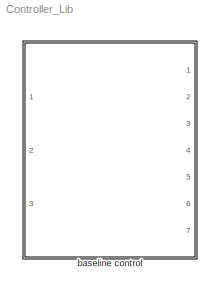
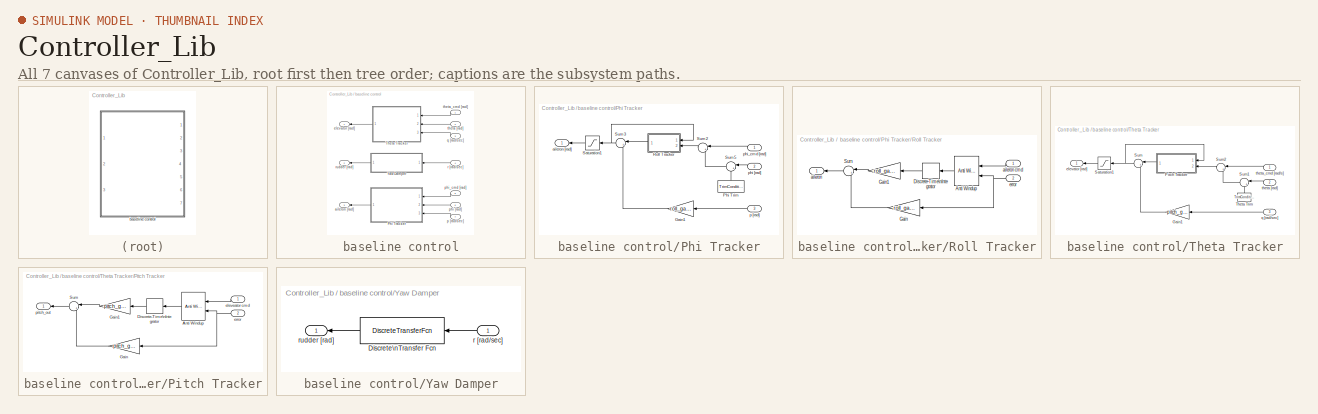
[diagram: thumbnail index - all 7 canvases of the model, root first then tree order]
MODEL Controller_Lib
KIND library
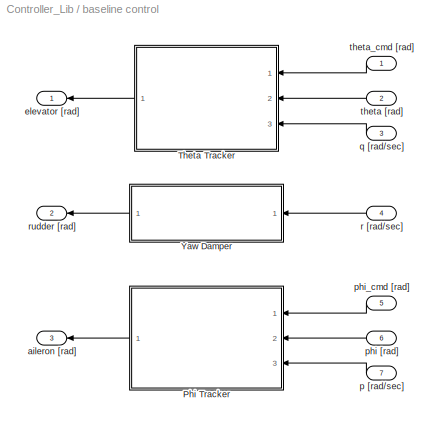
BLOCK [SubSystem] baseline control
  FunctionWithSeparateData = off
  MaskCallbackString = |||
  MaskDescription = The \"Pitch gains\" parameter takes a vector input in which the first term is the\nproportional pitch tracking gain, the second term is the integral pitch \ntracking gain, and the third term is the pitch rate proportional gain.\n\nThe \"Roll gains\" parameter takes a vector input in which the first term is the \nproportional roll tracking gain, the second term is the integral roll tracking \ngain,...<+254ch>
  MaskEnableString = on,on,on,on
  MaskHelp = This is a simple baseline controller model for the Ultrastick UAVs.\nFor the pitch axis, there is a pitch damper consisting of a proportional\ngain on the pitch rate. The output is subtracted from the output of a \nPI control pitch angle tracker, and the result is sent to the elevator \ncommand. \n\nFor the roll axis, there is a roll damper consisting of a proportional\ngain (kp_RD) on the roll ra...<+231ch>
  MaskHideContents = off
  MaskIconFrame = on
  MaskIconOpaque = on
  MaskIconRotate = none
  MaskIconUnits = autoscale
  MaskPortRotate = default
  MaskPromptString = Pitch gains:|Roll gains:|Yaw damper discrete transfer function numerator coefficients:|Yaw damper discrete transfer function denominator coefficients:
  MaskStyleString = edit,edit,edit,edit
  MaskToolTipString = on,on,on,on
  MaskTunableValueString = on,on,on,on
  MaskType = Baseline Controller
  MaskValueString = 0|0|0|0
  MaskVariables = pitch=@1;roll=@2;yaw_num=@3;yaw_den=@4;
  MaskVisibilityString = on,on,on,on
  MinAlgLoopOccurrences = off
  Opaque = off
  Ports = [7, 3]
  PropExecContextOutsideSubsystem = off
  RTWSystemCode = Auto
  RequestExecContextInheritance = off
  SID = 1
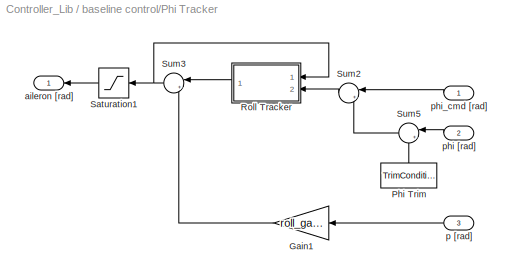
BLOCK [SubSystem] baseline control/Phi Tracker
  FunctionWithSeparateData = off
  MaskHideContents = off
  MinAlgLoopOccurrences = off
  Opaque = off
  Ports = [3, 1]
  PropExecContextOutsideSubsystem = off
  RTWSystemCode = Auto
  RequestExecContextInheritance = off
  SID = 9
BLOCK [Gain] baseline control/Phi Tracker/Gain1
  Gain = roll_gains(3)
  OutDataTypeMode = Inherit via internal rule
  OutDataTypeStr = Inherit: Inherit via internal rule
  ParamDataTypeStr = Inherit: Inherit via internal rule
  ParameterDataTypeMode = Inherit via internal rule
  SID = 13
  SaturateOnIntegerOverflow = off
BLOCK [Constant] baseline control/Phi Tracker/Phi Trim
  SID = 14
  Value = TrimCondition.AttitudeIni(1)
BLOCK [SubSystem] baseline control/Phi Tracker/Roll Tracker
  FunctionWithSeparateData = off
  MaskHideContents = off
  MinAlgLoopOccurrences = off
  Opaque = off
  Ports = [2, 1]
  PropExecContextOutsideSubsystem = off
  RTWSystemCode = Auto
  RequestExecContextInheritance = off
  SID = 15
BLOCK [Reference] baseline control/Phi Tracker/Roll Tracker/Anti Windup  REF=Actuator_Lib/Anti Windup
  FunctionWithSeparateData = off
  MAX_DEF = AC.Actuator.r_aileron.PosLim-TrimCondition.Inputs.r_aileron
  MIN_DEF = AC.Actuator.r_aileron.NegLim-TrimCondition.Inputs.r_aileron
  Ports = [2, 1]
  RTWMemSecDataConstants = Inherit from model
  RTWMemSecDataInternal = Inherit from model
  RTWMemSecDataParameters = Inherit from model
  RTWMemSecFuncExecute = Inherit from model
  RTWMemSecFuncInitTerm = Inherit from model
  SID = 18
  ShowPortLabels = FromPortIcon
  SourceBlock = Actuator_Lib/Anti Windup
  SourceType = Integrator Anti-Windup
  SystemSampleTime = -1
  gain_sign = off
BLOCK [DiscreteIntegrator] baseline control/Phi Tracker/Roll Tracker/Discrete-Time\nIntegrator
  ExternalReset = none
  ICPrevOutput = DiscIntNeverNeededParam
  ICPrevScaledInput = DiscIntNeverNeededParam
  InitialConditionSource = internal
  IntegratorMethod = Integration: Forward Euler
  OutDataType = fixdt(1, 16)
  OutScaling = 2^0
  Ports = [1, 1]
  SID = 19
  SampleTime = .02
BLOCK [Gain] baseline control/Phi Tracker/Roll Tracker/Gain
  Gain = roll_gains(1)
  OutDataType = fixdt(1, 16)
  OutDataTypeMode = Inherit via internal rule
  OutDataTypeStr = Inherit: Inherit via internal rule
  OutScaling = 2^0
  ParamDataTypeStr = Inherit: Inherit via internal rule
  ParameterDataType = fixdt(1, 16)
  ParameterDataTypeMode = Inherit via internal rule
  ParameterScaling = 2^0
  SID = 20
  SampleTime = SampleTime
  SaturateOnIntegerOverflow = off
BLOCK [Gain] baseline control/Phi Tracker/Roll Tracker/Gain1
  Gain = roll_gains(2)
  OutDataType = fixdt(1, 16)
  OutDataTypeMode = Inherit via internal rule
  OutDataTypeStr = Inherit: Inherit via internal rule
  OutScaling = 2^0
  ParamDataTypeStr = Inherit: Inherit via internal rule
  ParameterDataType = fixdt(1, 16)
  ParameterDataTypeMode = Inherit via internal rule
  ParameterScaling = 2^0
  SID = 21
  SampleTime = SampleTime
  SaturateOnIntegerOverflow = off
BLOCK [Sum] baseline control/Phi Tracker/Roll Tracker/Sum
  IconShape = round
  InputSameDT = off
  Inputs = |++
  OutDataType = fixdt(1, 16)
  OutDataTypeMode = Inherit via internal rule
  OutDataTypeStr = Inherit: Inherit via internal rule
  OutScaling = 2^0
  Ports = [2, 1]
  SID = 22
  SampleTime = .02
  SaturateOnIntegerOverflow = off
BLOCK [Outport] baseline control/Phi Tracker/Roll Tracker/aileron
  IconDisplay = Port number
  OutDataType = fixdt(1, 16)
  OutScaling = 2^0
  SID = 23
BLOCK [Inport] baseline control/Phi Tracker/Roll Tracker/aileron cmd
  IconDisplay = Port number
  OutDataType = fixdt(1, 16)
  OutScaling = 2^0
  SID = 16
BLOCK [Inport] baseline control/Phi Tracker/Roll Tracker/error
  IconDisplay = Port number
  OutDataType = fixdt(1, 16)
  OutScaling = 2^0
  Port = 2
  SID = 17
BLOCK [Saturate] baseline control/Phi Tracker/Saturation1
  LowerLimit = AC.Actuator.r_aileron.NegLim-TrimCondition.Inputs.r_aileron
  Ports = [1, 1]
  SID = 24
  SampleTime = SampleTime
  UpperLimit = AC.Actuator.r_aileron.PosLim-TrimCondition.Inputs.r_aileron
BLOCK [Sum] baseline control/Phi Tracker/Sum2
  IconShape = round
  InputSameDT = off
  Inputs = |+-
  OutDataTypeMode = Inherit via internal rule
  OutDataTypeStr = Inherit: Inherit via internal rule
  Ports = [2, 1]
  SID = 25
  SampleTime = SampleTime
  SaturateOnIntegerOverflow = off
BLOCK [Sum] baseline control/Phi Tracker/Sum3
  IconShape = round
  InputSameDT = off
  Inputs = |+-
  OutDataTypeMode = Inherit via internal rule
  OutDataTypeStr = Inherit: Inherit via internal rule
  Ports = [2, 1]
  SID = 26
  SampleTime = SampleTime
  SaturateOnIntegerOverflow = off
BLOCK [Sum] baseline control/Phi Tracker/Sum5
  IconShape = round
  InputSameDT = off
  Inputs = |+-
  OutDataTypeMode = Inherit via internal rule
  OutDataTypeStr = Inherit: Inherit via internal rule
  Ports = [2, 1]
  SID = 27
  SampleTime = SampleTime
  SaturateOnIntegerOverflow = off
BLOCK [Outport] baseline control/Phi Tracker/aileron [rad]
  IconDisplay = Port number
  SID = 28
BLOCK [Inport] baseline control/Phi Tracker/p [rad]
  IconDisplay = Port number
  Port = 3
  SID = 12
BLOCK [Inport] baseline control/Phi Tracker/phi [rad]
  IconDisplay = Port number
  Port = 2
  SID = 11
BLOCK [Inport] baseline control/Phi Tracker/phi_cmd [rad]
  IconDisplay = Port number
  SID = 10
BLOCK [SubSystem] baseline control/Theta Tracker
  FunctionWithSeparateData = off
  MaskHideContents = off
  MinAlgLoopOccurrences = off
  Opaque = off
  Ports = [3, 1]
  PropExecContextOutsideSubsystem = off
  RTWSystemCode = Auto
  RequestExecContextInheritance = off
  SID = 29
BLOCK [Constant] baseline control/Theta Tracker/ Theta Trim
  SID = 33
  Value = TrimCondition.AttitudeIni(2)
BLOCK [Gain] baseline control/Theta Tracker/Gain1
  Gain = pitch_gains(3)
  OutDataTypeMode = Inherit via internal rule
  OutDataTypeStr = Inherit: Inherit via internal rule
  ParamDataTypeStr = Inherit: Inherit via internal rule
  ParameterDataTypeMode = Inherit via internal rule
  SID = 57
  SaturateOnIntegerOverflow = off
BLOCK [SubSystem] baseline control/Theta Tracker/Pitch Tracker
  FunctionWithSeparateData = off
  MaskHideContents = off
  MinAlgLoopOccurrences = off
  Opaque = off
  Ports = [2, 1]
  PropExecContextOutsideSubsystem = off
  RTWSystemCode = Auto
  RequestExecContextInheritance = off
  SID = 35
BLOCK [Reference] baseline control/Theta Tracker/Pitch Tracker/Anti Windup  REF=Actuator_Lib/Anti Windup
  FunctionWithSeparateData = off
  MAX_DEF = AC.Actuator.elevator.PosLim-TrimCondition.Inputs.elevator-15*pi/180
  MIN_DEF = AC.Actuator.elevator.NegLim-TrimCondition.Inputs.elevator+15*pi/180
  Ports = [2, 1]
  RTWMemSecDataConstants = Inherit from model
  RTWMemSecDataInternal = Inherit from model
  RTWMemSecDataParameters = Inherit from model
  RTWMemSecFuncExecute = Inherit from model
  RTWMemSecFuncInitTerm = Inherit from model
  SID = 38
  ShowPortLabels = FromPortIcon
  SourceBlock = Actuator_Lib/Anti Windup
  SourceType = Integrator Anti-Windup
  SystemSampleTime = -1
  gain_sign = off
BLOCK [DiscreteIntegrator] baseline control/Theta Tracker/Pitch Tracker/Discrete-Time\nIntegrator
  ExternalReset = none
  ICPrevOutput = DiscIntNeverNeededParam
  ICPrevScaledInput = DiscIntNeverNeededParam
  InitialConditionSource = internal
  IntegratorMethod = Integration: Forward Euler
  OutDataType = fixdt(1, 16)
  OutScaling = 2^0
  Ports = [1, 1]
  SID = 39
  SampleTime = .02
BLOCK [Gain] baseline control/Theta Tracker/Pitch Tracker/Gain
  Gain = pitch_gains(1)
  OutDataType = fixdt(1, 16)
  OutDataTypeMode = Inherit via internal rule
  OutDataTypeStr = Inherit: Inherit via internal rule
  OutScaling = 2^0
  ParamDataTypeStr = Inherit: Inherit via internal rule
  ParameterDataType = fixdt(1, 16)
  ParameterDataTypeMode = Inherit via internal rule
  ParameterScaling = 2^0
  SID = 40
  SaturateOnIntegerOverflow = off
BLOCK [Gain] baseline control/Theta Tracker/Pitch Tracker/Gain1
  Gain = pitch_gains(2)
  OutDataType = fixdt(1, 16)
  OutDataTypeMode = Inherit via internal rule
  OutDataTypeStr = Inherit: Inherit via internal rule
  OutScaling = 2^0
  ParamDataTypeStr = Inherit: Inherit via internal rule
  ParameterDataType = fixdt(1, 16)
  ParameterDataTypeMode = Inherit via internal rule
  ParameterScaling = 2^0
  SID = 41
  SaturateOnIntegerOverflow = off
BLOCK [Sum] baseline control/Theta Tracker/Pitch Tracker/Sum
  IconShape = round
  InputSameDT = off
  Inputs = |++
  OutDataType = fixdt(1, 16)
  OutDataTypeMode = Inherit via internal rule
  OutDataTypeStr = Inherit: Inherit via internal rule
  OutScaling = 2^0
  Ports = [2, 1]
  SID = 42
  SaturateOnIntegerOverflow = off
BLOCK [Inport] baseline control/Theta Tracker/Pitch Tracker/eleveator cmd
  IconDisplay = Port number
  OutDataType = fixdt(1, 16)
  OutScaling = 2^0
  SID = 36
BLOCK [Inport] baseline control/Theta Tracker/Pitch Tracker/error
  IconDisplay = Port number
  OutDataType = fixdt(1, 16)
  OutScaling = 2^0
  Port = 2
  SID = 37
BLOCK [Outport] baseline control/Theta Tracker/Pitch Tracker/pitch_out
  IconDisplay = Port number
  OutDataType = fixdt(1, 16)
  OutScaling = 2^0
  SID = 43
BLOCK [Saturate] baseline control/Theta Tracker/Saturation1
  LowerLimit = AC.Actuator.elevator.NegLim-TrimCondition.Inputs.elevator
  Ports = [1, 1]
  SID = 44
  SampleTime = SampleTime
  UpperLimit = AC.Actuator.elevator.PosLim-TrimCondition.Inputs.elevator
BLOCK [Sum] baseline control/Theta Tracker/Sum
  IconShape = round
  InputSameDT = off
  Inputs = |+-
  OutDataTypeMode = Inherit via internal rule
  OutDataTypeStr = Inherit: Inherit via internal rule
  Ports = [2, 1]
  SID = 45
  SampleTime = SampleTime
  SaturateOnIntegerOverflow = off
BLOCK [Sum] baseline control/Theta Tracker/Sum1
  IconShape = round
  InputSameDT = off
  Inputs = |+-
  OutDataTypeMode = Inherit via internal rule
  OutDataTypeStr = Inherit: Inherit via internal rule
  Ports = [2, 1]
  SID = 46
  SampleTime = SampleTime
  SaturateOnIntegerOverflow = off
BLOCK [Sum] baseline control/Theta Tracker/Sum2
  IconShape = round
  InputSameDT = off
  Inputs = |+-
  OutDataTypeMode = Inherit via internal rule
  OutDataTypeStr = Inherit: Inherit via internal rule
  Ports = [2, 1]
  SID = 47
  SampleTime = SampleTime
  SaturateOnIntegerOverflow = off
BLOCK [Outport] baseline control/Theta Tracker/elevator [rad]
  IconDisplay = Port number
  SID = 48
BLOCK [Inport] baseline control/Theta Tracker/q [rad//sec]
  IconDisplay = Port number
  Port = 3
  SID = 32
BLOCK [Inport] baseline control/Theta Tracker/theta [rad]
  IconDisplay = Port number
  Port = 2
  SID = 31
BLOCK [Inport] baseline control/Theta Tracker/theta_cmd [rad//s]
  IconDisplay = Port number
  SID = 30
BLOCK [SubSystem] baseline control/Yaw Damper
  FunctionWithSeparateData = off
  MaskHideContents = off
  MinAlgLoopOccurrences = off
  Opaque = off
  Ports = [1, 1]
  PropExecContextOutsideSubsystem = off
  RTWSystemCode = Auto
  RequestExecContextInheritance = off
  SID = 49
BLOCK [DiscreteTransferFcn] baseline control/Yaw Damper/Discrete\nTransfer Fcn
  Denominator = yaw_damper_den
  Numerator = yaw_damper_num
  Ports = [1, 1]
  SID = 51
  SampleTime = SampleTime
BLOCK [Inport] baseline control/Yaw Damper/r [rad//sec]
  IconDisplay = Port number
  SID = 50
BLOCK [Outport] baseline control/Yaw Damper/rudder [rad]
  IconDisplay = Port number
  SID = 52
BLOCK [Outport] baseline control/aileron [rad]
  IconDisplay = Port number
  OutDataType = fixdt(1, 16)
  OutScaling = 2^0
  Port = 3
  SID = 55
BLOCK [Outport] baseline control/elevator [rad]
  IconDisplay = Port number
  OutDataType = fixdt(1, 16)
  OutScaling = 2^0
  SID = 53
BLOCK [Inport] baseline control/p [rad//sec]
  IconDisplay = Port number
  OutDataType = fixdt(1, 16)
  OutScaling = 2^0
  Port = 7
  SID = 8
BLOCK [Inport] baseline control/phi [rad]
  IconDisplay = Port number
  OutDataType = fixdt(1, 16)
  OutScaling = 2^0
  Port = 6
  SID = 7
BLOCK [Inport] baseline control/phi_cmd [rad]
  IconDisplay = Port number
  OutDataType = fixdt(1, 16)
  OutScaling = 2^0
  Port = 5
  SID = 6
BLOCK [Inport] baseline control/q [rad//sec]
  IconDisplay = Port number
  OutDataType = fixdt(1, 16)
  OutScaling = 2^0
  Port = 3
  SID = 4
BLOCK [Inport] baseline control/r [rad//sec]
  IconDisplay = Port number
  OutDataType = fixdt(1, 16)
  OutScaling = 2^0
  Port = 4
  SID = 5
BLOCK [Outport] baseline control/rudder [rad]
  IconDisplay = Port number
  OutDataType = fixdt(1, 16)
  OutScaling = 2^0
  Port = 2
  SID = 54
BLOCK [Inport] baseline control/theta [rad]
  IconDisplay = Port number
  OutDataType = fixdt(1, 16)
  OutScaling = 2^0
  Port = 2
  SID = 3
BLOCK [Inport] baseline control/theta_cmd [rad]
  IconDisplay = Port number
  OutDataType = fixdt(1, 16)
  OutScaling = 2^0
  SID = 2
LINE baseline control/Phi Tracker/Gain1:1 -> baseline control/Phi Tracker/Sum3:2
LINE baseline control/Phi Tracker/Phi Trim:1 -> baseline control/Phi Tracker/Sum5:2
LINE baseline control/Phi Tracker/Roll Tracker/Anti Windup:1 -> baseline control/Phi Tracker/Roll Tracker/Discrete-Time\nIntegrator:1
LINE baseline control/Phi Tracker/Roll Tracker/Discrete-Time\nIntegrator:1 -> baseline control/Phi Tracker/Roll Tracker/Gain1:1
LINE baseline control/Phi Tracker/Roll Tracker/Gain1:1 -> baseline control/Phi Tracker/Roll Tracker/Sum:1
LINE baseline control/Phi Tracker/Roll Tracker/Gain:1 -> baseline control/Phi Tracker/Roll Tracker/Sum:2
LINE baseline control/Phi Tracker/Roll Tracker/Sum:1 -> baseline control/Phi Tracker/Roll Tracker/aileron:1
LINE baseline control/Phi Tracker/Roll Tracker/aileron cmd:1 -> baseline control/Phi Tracker/Roll Tracker/Anti Windup:1
NET baseline control/Phi Tracker/Roll Tracker/error:1 -> baseline control/Phi Tracker/Roll Tracker/Anti Windup:2, baseline control/Phi Tracker/Roll Tracker/Gain:1
LINE baseline control/Phi Tracker/Roll Tracker:1 -> baseline control/Phi Tracker/Sum3:1
LINE baseline control/Phi Tracker/Saturation1:1 -> baseline control/Phi Tracker/aileron [rad]:1
LINE baseline control/Phi Tracker/Sum2:1 -> baseline control/Phi Tracker/Roll Tracker:2
NET baseline control/Phi Tracker/Sum3:1 -> baseline control/Phi Tracker/Roll Tracker:1, baseline control/Phi Tracker/Saturation1:1
LINE baseline control/Phi Tracker/Sum5:1 -> baseline control/Phi Tracker/Sum2:2
LINE baseline control/Phi Tracker/p [rad]:1 -> baseline control/Phi Tracker/Gain1:1
LINE baseline control/Phi Tracker/phi [rad]:1 -> baseline control/Phi Tracker/Sum5:1
LINE baseline control/Phi Tracker/phi_cmd [rad]:1 -> baseline control/Phi Tracker/Sum2:1
LINE baseline control/Phi Tracker:1 -> baseline control/aileron [rad]:1
LINE baseline control/Theta Tracker/ Theta Trim:1 -> baseline control/Theta Tracker/Sum1:2
LINE baseline control/Theta Tracker/Gain1:1 -> baseline control/Theta Tracker/Sum:2
LINE baseline control/Theta Tracker/Pitch Tracker/Anti Windup:1 -> baseline control/Theta Tracker/Pitch Tracker/Discrete-Time\nIntegrator:1
LINE baseline control/Theta Tracker/Pitch Tracker/Discrete-Time\nIntegrator:1 -> baseline control/Theta Tracker/Pitch Tracker/Gain1:1
LINE baseline control/Theta Tracker/Pitch Tracker/Gain1:1 -> baseline control/Theta Tracker/Pitch Tracker/Sum:1
LINE baseline control/Theta Tracker/Pitch Tracker/Gain:1 -> baseline control/Theta Tracker/Pitch Tracker/Sum:2
LINE baseline control/Theta Tracker/Pitch Tracker/Sum:1 -> baseline control/Theta Tracker/Pitch Tracker/pitch_out:1
LINE baseline control/Theta Tracker/Pitch Tracker/eleveator cmd:1 -> baseline control/Theta Tracker/Pitch Tracker/Anti Windup:1
NET baseline control/Theta Tracker/Pitch Tracker/error:1 -> baseline control/Theta Tracker/Pitch Tracker/Anti Windup:2, baseline control/Theta Tracker/Pitch Tracker/Gain:1
LINE baseline control/Theta Tracker/Pitch Tracker:1 -> baseline control/Theta Tracker/Sum:1
LINE baseline control/Theta Tracker/Saturation1:1 -> baseline control/Theta Tracker/elevator [rad]:1
LINE baseline control/Theta Tracker/Sum1:1 -> baseline control/Theta Tracker/Sum2:2
LINE baseline control/Theta Tracker/Sum2:1 -> baseline control/Theta Tracker/Pitch Tracker:2
NET baseline control/Theta Tracker/Sum:1 -> baseline control/Theta Tracker/Pitch Tracker:1, baseline control/Theta Tracker/Saturation1:1
LINE baseline control/Theta Tracker/q [rad//sec]:1 -> baseline control/Theta Tracker/Gain1:1
LINE baseline control/Theta Tracker/theta [rad]:1 -> baseline control/Theta Tracker/Sum1:1
LINE baseline control/Theta Tracker/theta_cmd [rad//s]:1 -> baseline control/Theta Tracker/Sum2:1
LINE baseline control/Theta Tracker:1 -> baseline control/elevator [rad]:1
LINE baseline control/Yaw Damper/Discrete\nTransfer Fcn:1 -> baseline control/Yaw Damper/rudder [rad]:1
LINE baseline control/Yaw Damper/r [rad//sec]:1 -> baseline control/Yaw Damper/Discrete\nTransfer Fcn:1
LINE baseline control/Yaw Damper:1 -> baseline control/rudder [rad]:1
LINE baseline control/p [rad//sec]:1 -> baseline control/Phi Tracker:3
LINE baseline control/phi [rad]:1 -> baseline control/Phi Tracker:2
LINE baseline control/phi_cmd [rad]:1 -> baseline control/Phi Tracker:1
LINE baseline control/q [rad//sec]:1 -> baseline control/Theta Tracker:3
LINE baseline control/r [rad//sec]:1 -> baseline control/Yaw Damper:1
LINE baseline control/theta [rad]:1 -> baseline control/Theta Tracker:2
LINE baseline control/theta_cmd [rad]:1 -> baseline control/Theta Tracker:1
note: NET lines group one-source signal fan-out (src -> all destinations, sorted); 1:1 wires keep LINE
